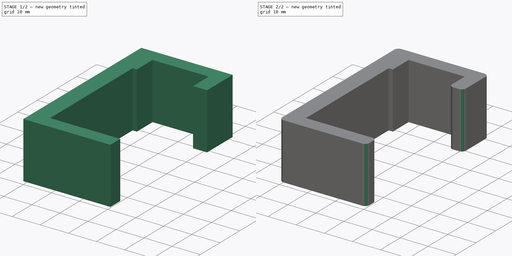
[diagram: build sequence overview — one tinted view per stage of 2, left to right]
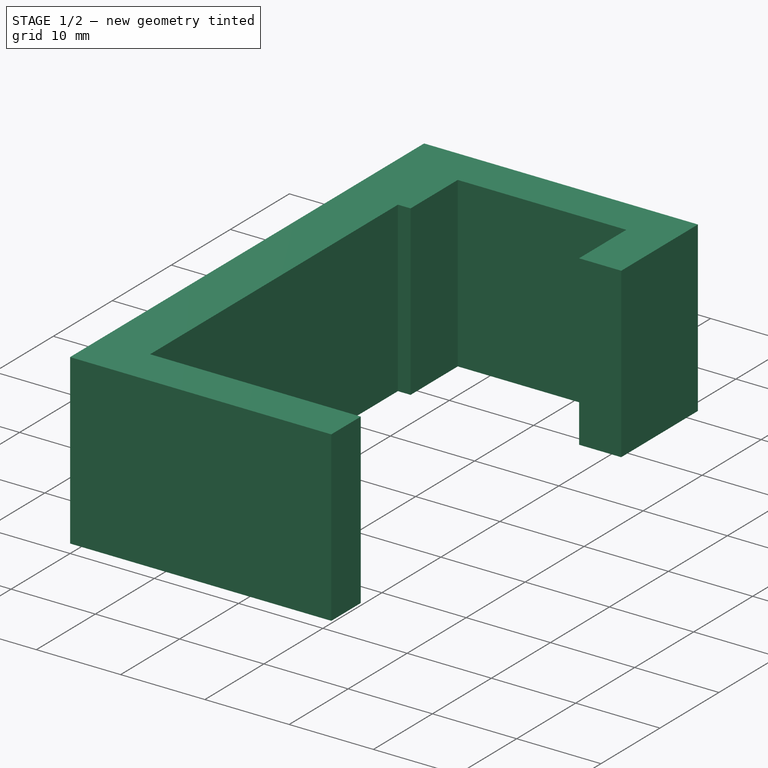
[diagram: stage 1 of 2 — iso view after this stage's code; geometry added in this stage tinted green]
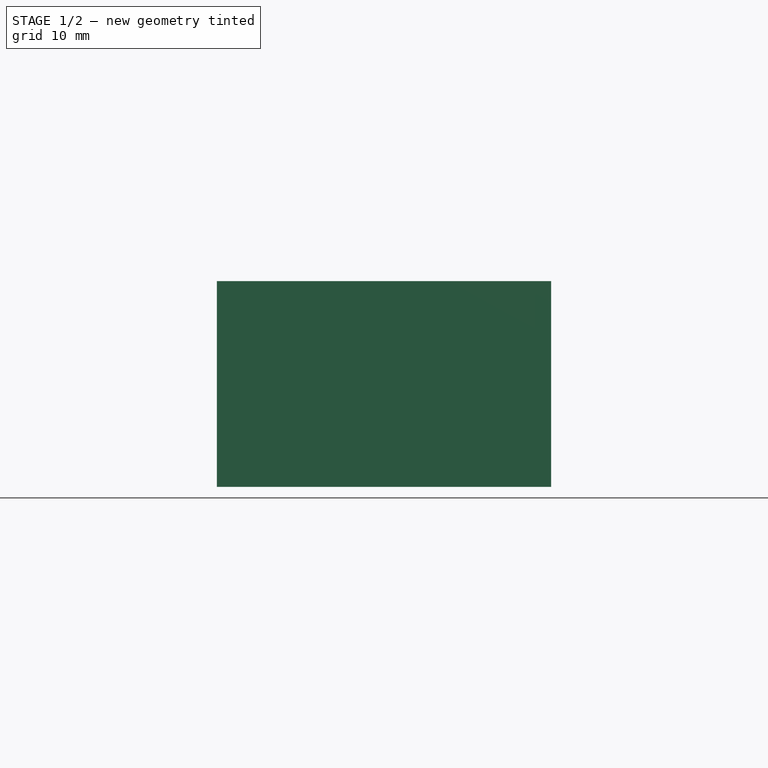
[diagram: stage 1 of 2 — front view after this stage's code; geometry added in this stage tinted green]
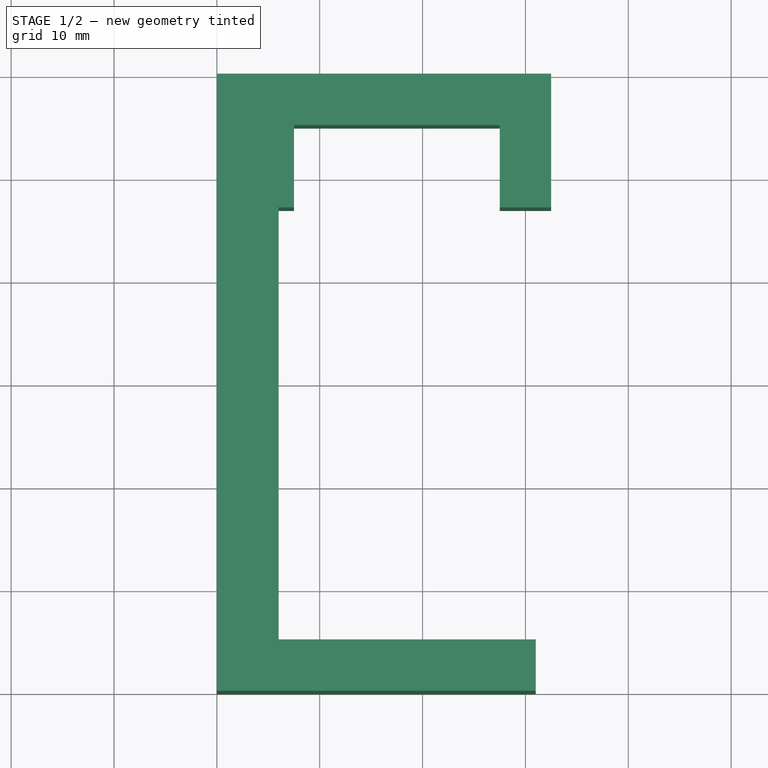
[diagram: stage 1 of 2 — top view after this stage's code; geometry added in this stage tinted green]
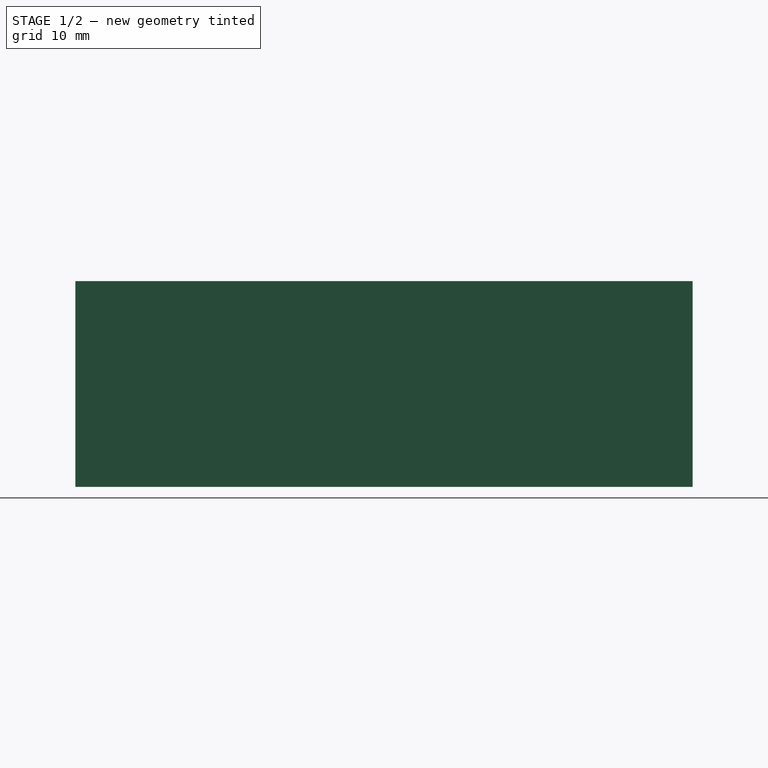
[diagram: stage 1 of 2 — right view after this stage's code; geometry added in this stage tinted green]
FCSTD DOCUMENT  (FreeCAD 0.20R29177 +426 (Git))
Label: baseClampServoHolder
License: All rights reserved
LicenseURL: http://en.wikipedia.org/wiki/All_rights_reserved
objects: Sketcher::SketchObject×1, Part::Extrusion×1, Part::Fillet×1
note: 3 computed .brp shape members not serialized (recipe doc carries the construction recipe); baked Part::Feature solids carry a one-line shape summary decoded from their .brp

FEATURE [Sketcher::SketchObject] Sketch
  FullyConstrained = true
  sketch-geometry (15):
    g0: LineSegment StartX=31 StartY=0 StartZ=0 EndX=31 EndY=5 EndZ=0
    g1: LineSegment StartX=31 StartY=5 StartZ=0 EndX=6 EndY=5 EndZ=0
    g2: LineSegment StartX=32.5 StartY=55 StartZ=0 EndX=32.5 EndY=60 EndZ=0
    g3: LineSegment StartX=0 StartY=60 StartZ=0 EndX=0 EndY=0 EndZ=0
    g4: LineSegment StartX=0 StartY=60 StartZ=0 EndX=6 EndY=60 EndZ=0
    g5: LineSegment StartX=6 StartY=60 StartZ=0 EndX=32.5 EndY=60 EndZ=0
    g6: LineSegment StartX=7.5 StartY=55 StartZ=0 EndX=27.5 EndY=55 EndZ=0
    g7: LineSegment StartX=27.5 StartY=55 StartZ=0 EndX=27.5 EndY=47 EndZ=0
    g8: LineSegment StartX=27.5 StartY=47 StartZ=0 EndX=32.5 EndY=47 EndZ=0
    g9: LineSegment StartX=32.5 StartY=47 StartZ=0 EndX=32.5 EndY=55 EndZ=0
    g10: LineSegment StartX=6 StartY=5 StartZ=0 EndX=6 EndY=47 EndZ=0
    g11: LineSegment StartX=6 StartY=47 StartZ=0 EndX=7.5 EndY=47 EndZ=0
    g12: LineSegment StartX=7.5 StartY=47 StartZ=0 EndX=7.5 EndY=55 EndZ=0
    g13: LineSegment StartX=0 StartY=0 StartZ=0 EndX=6 EndY=0 EndZ=0
    g14: LineSegment StartX=6 StartY=0 StartZ=0 EndX=31 EndY=0 EndZ=0
  constraints (44):
    c: PointOnObject(g0,g-1)
    c: Coincident(g0,g1)
    c: Horizontal(g1)
    c: Vertical(g2)
    c: PointOnObject(g3,g-2)
    c: Coincident(g3,g-1)
    c: DistanceY(g3,g3) = 60
    c: DistanceY(g2,g2) = 5
    c: Vertical(g0)
    c: Coincident(g3,g4)
    c: Horizontal(g4)
    c: Coincident(g4,g5)
    c: Coincident(g5,g2)
    c: Horizontal(g5)
    c: Coincident(g6,g7)
    c: Vertical(g7)
    c: Coincident(g7,g8)
    c: Horizontal(g8)
    c: Coincident(g8,g9)
    c: Coincident(g9,g2)
    c: Vertical(g9)
    c: DistanceY(g9,g9) = 8
    c: Equal(g9,g7)
    c: DistanceX(g6,g6) = 20
    c: DistanceX(g1,g1) = 25
    c: DistanceX(g8,g8) = 5
    c: DistanceX(g4,g4) = 6
    c: Equal(g2,g0)
    c: Horizontal(g6)
    c: DistanceX(g5,g5) = 26.5
    c: Coincident(g1,g10)
    c: Vertical(g10)
    c: Coincident(g10,g11)
    c: Horizontal(g11)
    c: Coincident(g11,g12)
    c: Coincident(g12,g6)
    c: Vertical(g12)
    c: DistanceY(g12,g12) = 8
    c: Coincident(g3,g13)
    c: PointOnObject(g13,g-1)
    c: Coincident(g13,g14)
    c: Coincident(g14,g0)
    c: Equal(g1,g14)
    c: Equal(g4,g13)
FEATURE [Part::Extrusion] Extrude
  Base = -> Sketch
  Dir = (0,0,1)
  DirMode = 2
  FaceMakerClass = Part::FaceMakerBullseye
  LengthFwd = 20
  LengthRev = 0
  Solid = true
  Symmetric = false
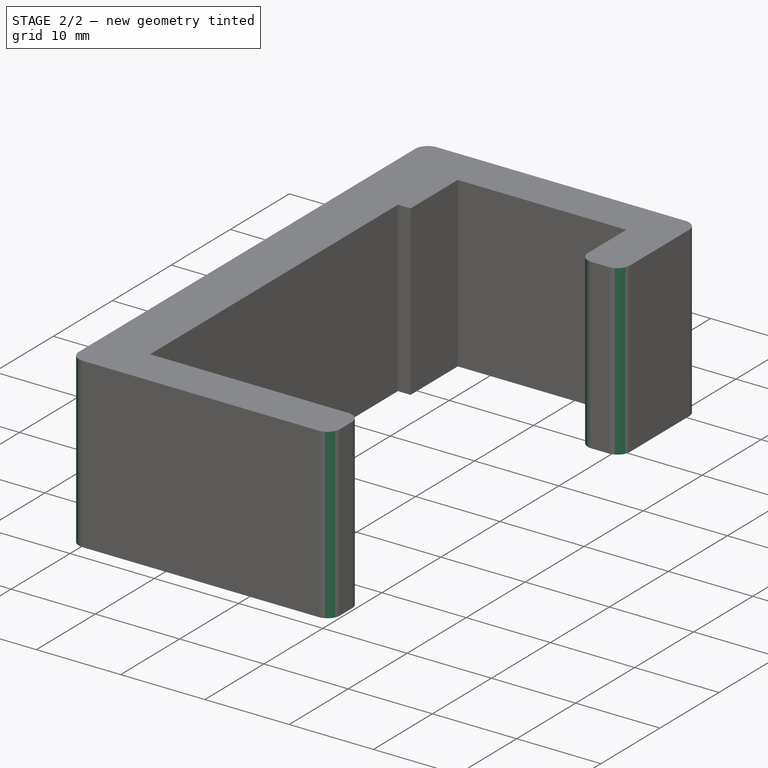
[diagram: stage 2 of 2 — iso view after this stage's code; geometry added in this stage tinted green]
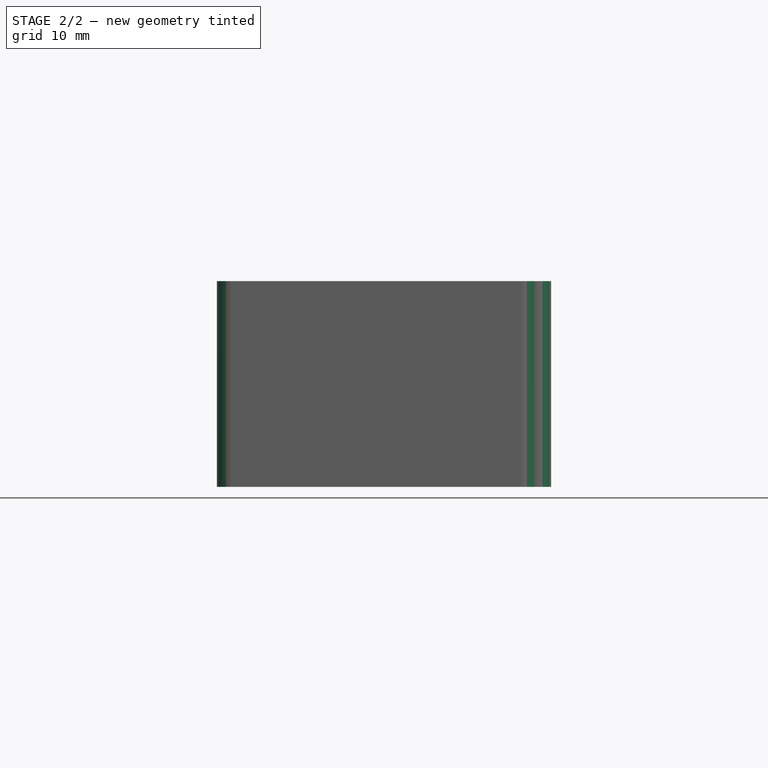
[diagram: stage 2 of 2 — front view after this stage's code; geometry added in this stage tinted green]
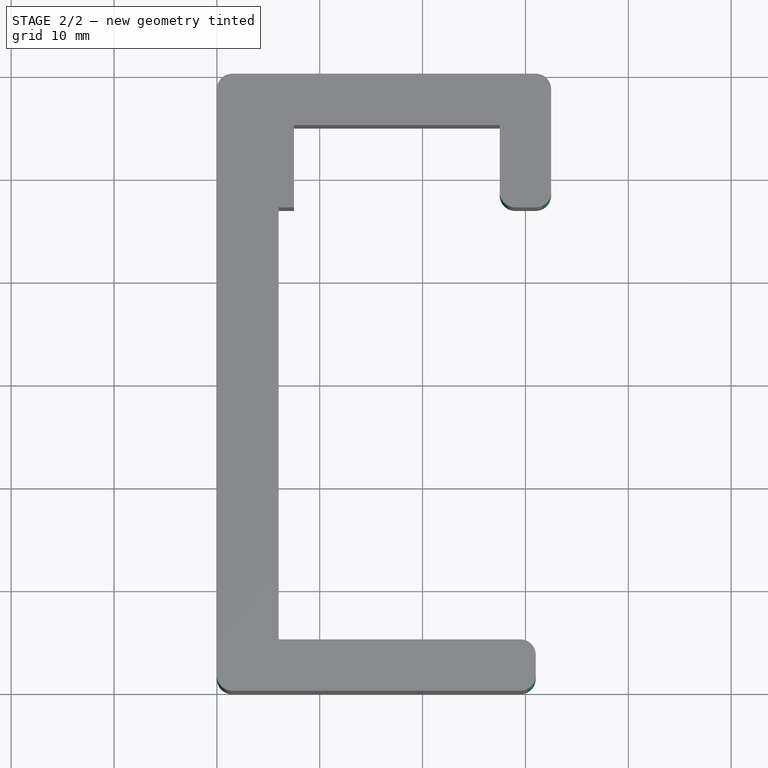
[diagram: stage 2 of 2 — top view after this stage's code; geometry added in this stage tinted green]
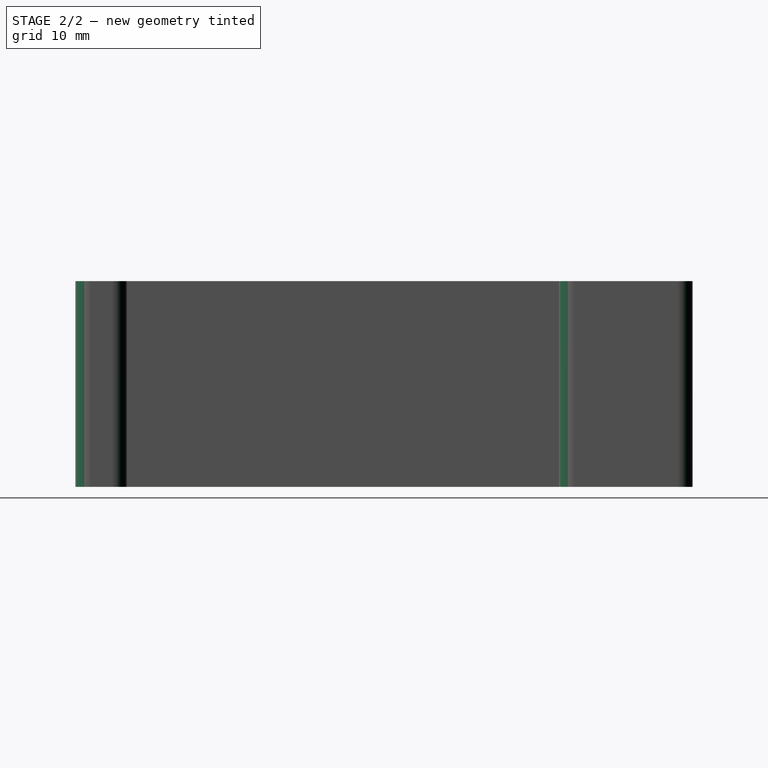
[diagram: stage 2 of 2 — right view after this stage's code; geometry added in this stage tinted green]
FEATURE [Part::Fillet] Fillet
  Base = -> Extrude
  Edges = 7 edges r=1.5: [Edge1,Edge2,Edge8,Edge11,Edge29,Edge32,Edge38]
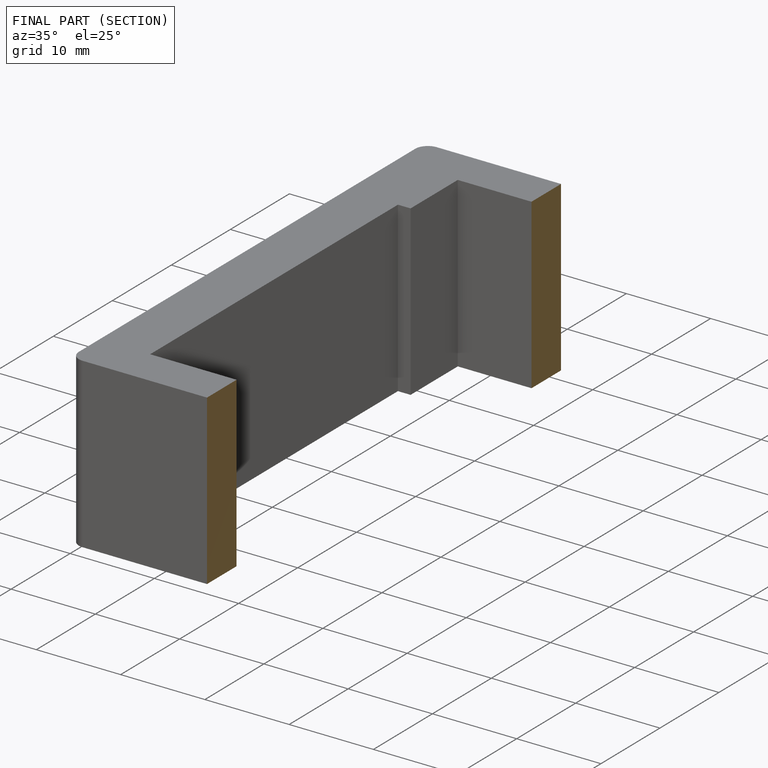
[diagram: finished part — half-section view (interior)]
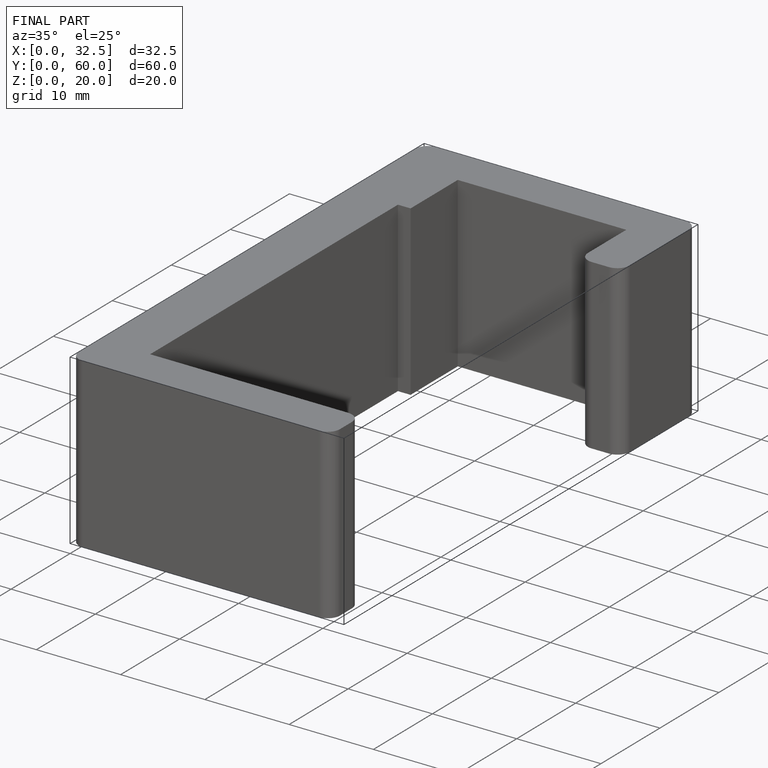
[diagram: finished part — iso view with bounding-box wireframe]
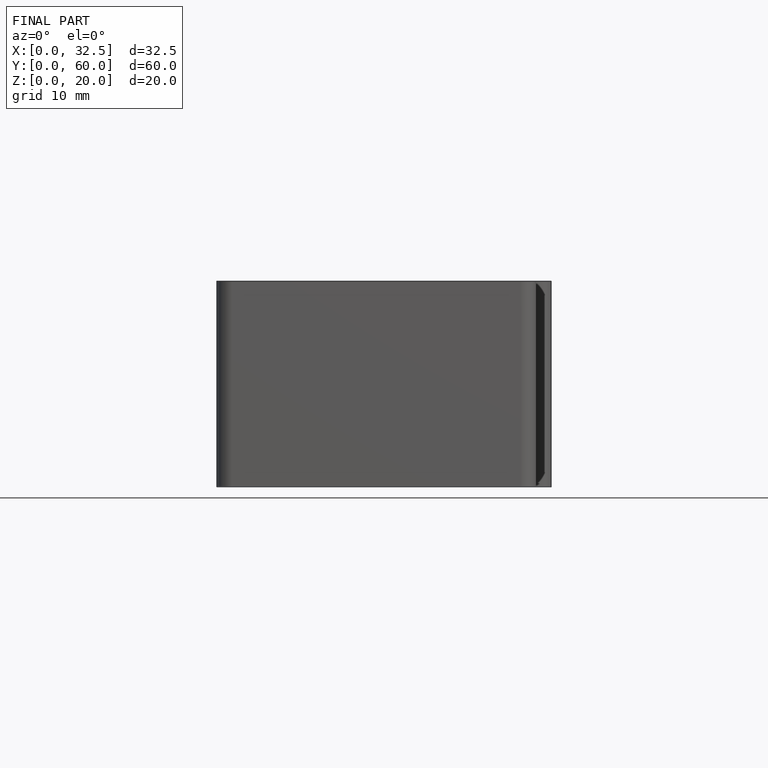
[diagram: finished part — front view with bounding-box wireframe]
